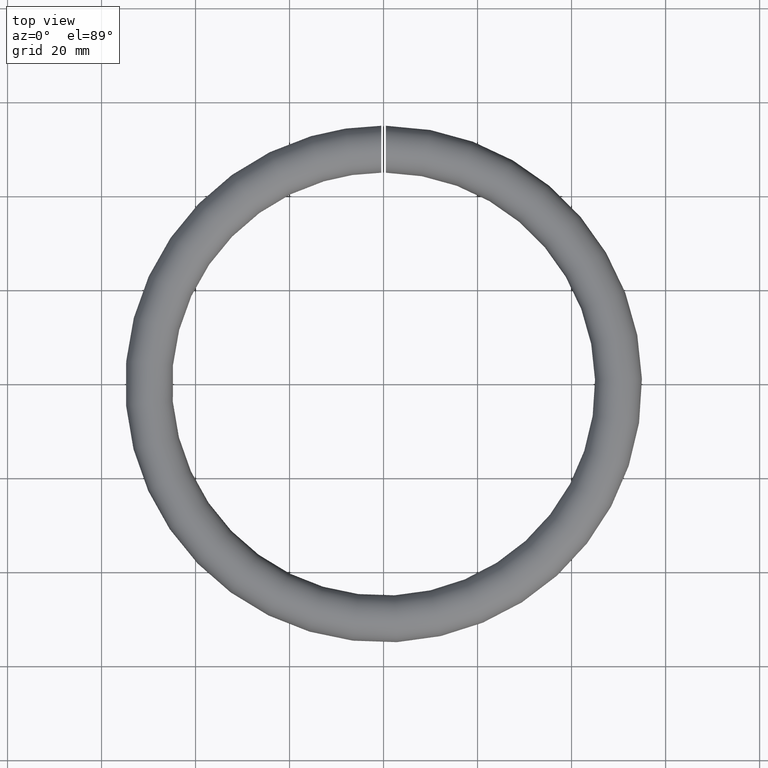
[diagram: clean part render]
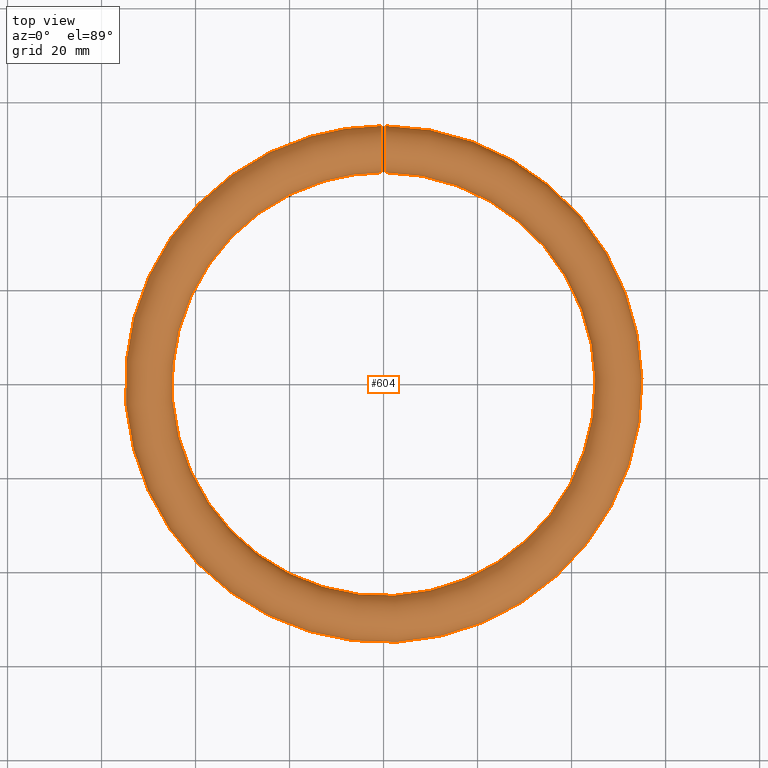
[diagram: same view with one face highlighted and labeled with its STEP entity id]
A machine part, top view. The second image highlights one B-rep face of the part: STEP entity #604.
In plain terms, the highlighted toroidal blend (fillet) surface has major radius 50 mm and minor (blend) radius 5 mm.
Its self-contained STEP definition (entity closure, byte-faithful):
#97 = EDGE_CURVE ( 'NONE', #10838, #10838, #9146, .T. ) ;
#106 = CARTESIAN_POINT ( 'NONE',  ( 0.5000000000000001100, 54.05339885584003000, -2.942461757279813300 ) ) ;
#261 = ORIENTED_EDGE ( 'NONE', *, *, #7487, .T. ) ;
#312 = CARTESIAN_POINT ( 'NONE',  ( 0.5000000000000001100, 45.44624804768028500, 2.096687624739268100 ) ) ;
#341 = CARTESIAN_POINT ( 'NONE',  ( 0.5000000000000001100, 52.94224342296823200, 4.054283343569194300 ) ) ;
#531 = CARTESIAN_POINT ( 'NONE',  ( -0.5000000000000001100, 51.62873146542833100, 4.729256036996202000 ) ) ;
#581 = CARTESIAN_POINT ( 'NONE',  ( -0.5000000000000000000, 52.66673879582198500, 4.240682915255522500 ) ) ;
#604 = ADVANCED_FACE ( 'NONE', ( #5918, #3274 ), #8352, .T. ) ;
#623 = CARTESIAN_POINT ( 'NONE',  ( -0.5000000000000002200, 50.79099305248964700, -4.947423658660608400 ) ) ;
#659 = CARTESIAN_POINT ( 'NONE',  ( -0.5000000000000000000, 44.98847468904049400, -0.1386555883358668600 ) ) ;
#700 = CARTESIAN_POINT ( 'NONE',  ( -0.5000000000000000000, 54.57193976712078900, 2.045563722136800600 ) ) ;
#844 = CARTESIAN_POINT ( 'NONE',  ( -0.4999999999999998900, 47.76354026244824500, -4.476210531569855700 ) ) ;
#899 = CARTESIAN_POINT ( 'NONE',  ( 0.5000000000000001100, 53.63571253122295700, -3.445507016077563400 ) ) ;
#1026 = CARTESIAN_POINT ( 'NONE',  ( 0.4999999999999998900, 54.54847125881668300, -2.097099958998216000 ) ) ;
#1061 = CARTESIAN_POINT ( 'NONE',  ( 0.5000000000000002200, 47.90468823406564500, -4.552801347687329200 ) ) ;
#1231 = CARTESIAN_POINT ( 'NONE',  ( 0.5000000000000003300, 49.21229729620159800, 4.948787847516219300 ) ) ;
#1274 = CARTESIAN_POINT ( 'NONE',  ( 0.5000000000000001100, 45.05866468543285900, 0.8468609916860232500 ) ) ;
#1483 = CARTESIAN_POINT ( 'NONE',  ( -0.4999999999999998900, 52.08457646597757700, 4.546583573426946900 ) ) ;
#1516 = CARTESIAN_POINT ( 'NONE',  ( -0.4999999999999998900, 52.19015832172614500, -4.496579342992024700 ) ) ;
#1556 = CARTESIAN_POINT ( 'NONE',  ( -0.5000000000000000000, 49.85862259276667200, 5.008679013557837400 ) ) ;
#1608 = CARTESIAN_POINT ( 'NONE',  ( -0.4999999999999998900, 52.23413712422110700, 4.474910137579317200 ) ) ;
#1759 = CARTESIAN_POINT ( 'NONE',  ( -0.4999999999999998900, 47.91067462153917900, -4.546697793431054200 ) ) ;
#1842 = CARTESIAN_POINT ( 'NONE',  ( 0.5000000000000002200, 54.96166799245860100, 0.6211285442158399600 ) ) ;
#1890 = CARTESIAN_POINT ( 'NONE',  ( 0.5000000000000000000, 55.00490348769945100, -0.1925885452237754100 ) ) ;
#1924 = CARTESIAN_POINT ( 'NONE',  ( 0.5000000000000002200, 47.05881801501092100, -4.048703112022192100 ) ) ;
#2014 = CARTESIAN_POINT ( 'NONE',  ( 0.5000000000000001100, 54.67728952670099600, -1.791014742488578700 ) ) ;
#2093 = CARTESIAN_POINT ( 'NONE',  ( 0.5000000000000001100, 46.04943041596606400, 3.072613798725525300 ) ) ;
#2180 = CARTESIAN_POINT ( 'NONE',  ( 0.4999999999999998900, 45.03291629936367700, -0.6185327342993243200 ) ) ;
#2373 = CARTESIAN_POINT ( 'NONE',  ( -0.4999999999999998900, 50.14093151474559600, -5.008592567173492300 ) ) ;
#2412 = CARTESIAN_POINT ( 'NONE',  ( -0.5000000000000002200, 53.40744113768951000, -3.671795873389160500 ) ) ;
#2463 = CARTESIAN_POINT ( 'NONE',  ( -0.4999999999999998900, 45.49880181683597900, -2.188714117849487100 ) ) ;
#2510 = CARTESIAN_POINT ( 'NONE',  ( -0.4999999999999998900, 54.67828678901789600, -1.788638645916340600 ) ) ;
#2533 = CARTESIAN_POINT ( 'NONE',  ( 0.5000000000000000000, 46.11439381848270400, -3.150098677149177900 ) ) ;
#2539 = CARTESIAN_POINT ( 'NONE',  ( -0.4999999999999998900, 54.26497366904961000, 2.626453770067559600 ) ) ;
#2739 = CARTESIAN_POINT ( 'NONE',  ( 0.5000000000000002200, 55.00651721480324600, 0.1346109607581106900 ) ) ;
#2808 = CARTESIAN_POINT ( 'NONE',  ( 0.5000000000000000000, 54.69755112238809900, 1.737555502815164400 ) ) ;
#2943 = CARTESIAN_POINT ( 'NONE',  ( 0.5000000000000000000, 44.99047316308842400, 0.1975589473094370700 ) ) ;
#2977 = CARTESIAN_POINT ( 'NONE',  ( 0.5000000000000002200, 51.16419726337262800, 4.873130174511799400 ) ) ;
#3070 = CARTESIAN_POINT ( 'NONE',  ( 0.5000000000000000000, 47.38013953038872500, 4.272744410352815200 ) ) ;
#3274 = FACE_OUTER_BOUND ( 'NONE', #6947, .T. ) ;
#3304 = CARTESIAN_POINT ( 'NONE',  ( -0.5000000000000002200, 54.05493618288313900, -2.940227316764771400 ) ) ;
#3355 = CARTESIAN_POINT ( 'NONE',  ( -0.5000000000000000000, 48.21283629988902000, -4.673558845428013700 ) ) ;
#3395 = CARTESIAN_POINT ( 'NONE',  ( -0.5000000000000000000, 45.75564294653093400, 2.667331525757360200 ) ) ;
#3434 = CARTESIAN_POINT ( 'NONE',  ( -0.5000000000000001100, 51.78216188877376400, 4.673561995244440000 ) ) ;
#3474 = CARTESIAN_POINT ( 'NONE',  ( -0.4999999999999997800, 52.04236793931662000, -4.565717075001612300 ) ) ;
#3582 = CARTESIAN_POINT ( 'NONE',  ( -0.5000000000000000000, 46.55365628190583000, -3.640060743238307900 ) ) ;
#3761 = CARTESIAN_POINT ( 'NONE',  ( 0.5000000000000000000, 47.33063889800627800, -4.232674605499621400 ) ) ;
#3837 = CARTESIAN_POINT ( 'NONE',  ( 0.5000000000000001100, 49.15525567614179900, -4.939340736679661800 ) ) ;
#3932 = CARTESIAN_POINT ( 'NONE',  ( 0.4999999999999998900, 45.12582713544951200, 1.173034431271106500 ) ) ;
#3955 = B_SPLINE_CURVE_WITH_KNOTS ( 'NONE', 3,
 ( #6928, #7857, #10664, #2463, #7089, #4291, #9820, #11774, #5193, #659, #11646, #10762, #10842, #9777, #10797, #3395, #7139, #8937, #10714, #6303, #6145, #6260, #7180, #11681, #9909, #1556, #5285, #7047, #8057, #531, #3434, #1483, #1608, #581, #5359, #5241, #11729, #8865, #2539, #700, #4383, #9868, #11805, #6181, #8097, #7979, #9030, #2510, #5318, #4337, #3304, #6218, #2412, #7213, #7930, #1516, #3474, #9939, #8023, #4257, #623, #2373, #8899, #8984, #4420, #10887, #3355, #1759, #844, #9974, #11059, #3582, #11934, #7318 ),
 .UNSPECIFIED., .T., .F.,
 ( 4, 2, 2, 2, 2, 2, 2, 2, 2, 2, 2, 2, 2, 2, 2, 2, 2, 2, 2, 2, 2, 2, 2, 2, 2, 2, 2, 2, 2, 2, 2, 2, 2, 2, 2, 2, 4 ),
 ( 0.0000000000000000000, 0.0009769328701743236700, 0.001465399305261485600, 0.001953865740348647300, 0.002930798610522964700, 0.003907731480697281700, 0.004884664350871599500, 0.005861597221045916500, 0.006838530091220232500, 0.007815462961394549500, 0.008792395831568865600, 0.009769328701743183400, 0.01074626157191749900, 0.01172319444209181700, 0.01270012731226613300, 0.01318859374735329100, 0.01367706018244044900, 0.01465399305261475200, 0.01563092592278905000, 0.01660785879296335100, 0.01758479166313765100, 0.01856172453331195200, 0.01953865740348625200, 0.02051559027366054900, 0.02149252314383485000, 0.02246945601400914700, 0.02344638888418345100, 0.02442332175435774800, 0.02491178818944490100, 0.02540025462453205200, 0.02637718749470634900, 0.02735412036488064900, 0.02833105323505494600, 0.02881951967014210300, 0.02930798610522925400, 0.03028491897540355400, 0.03126185184557785800 ),
 .UNSPECIFIED. ) ;
#3972 = CARTESIAN_POINT ( 'NONE',  ( 0.5000000000000001100, 46.59503554127384500, 3.678745041951250600 ) ) ;
#4004 = CARTESIAN_POINT ( 'NONE',  ( 0.5000000000000003300, 50.19633856988521400, 5.006668374467188300 ) ) ;
#4257 = CARTESIAN_POINT ( 'NONE',  ( -0.5000000000000000000, 51.11081552024006700, -4.885524791492903400 ) ) ;
#4291 = CARTESIAN_POINT ( 'NONE',  ( -0.5000000000000000000, 45.30572719170671500, -1.736844963863942500 ) ) ;
#4337 = CARTESIAN_POINT ( 'NONE',  ( -0.5000000000000000000, 54.24101088353894800, -2.664848406459241000 ) ) ;
#4383 = CARTESIAN_POINT ( 'NONE',  ( -0.5000000000000000000, 54.69664084878910900, 1.739581713564880600 ) ) ;
#4420 = CARTESIAN_POINT ( 'NONE',  ( -0.5000000000000001100, 48.83926423770012800, -4.875076280987465300 ) ) ;
#4478 = VERTEX_POINT ( 'NONE', #5279 ) ;
#4671 = CARTESIAN_POINT ( 'NONE',  ( 0.5000000000000001100, 51.73299800573005300, -4.700465236432758200 ) ) ;
#4714 = AXIS2_PLACEMENT_3D ( 'NONE', #5517, #10995, #7351 ) ;
#4792 = CARTESIAN_POINT ( 'NONE',  ( 0.5000000000000001100, 54.23600871166464500, -2.672820481106030800 ) ) ;
#4839 = CARTESIAN_POINT ( 'NONE',  ( 0.5000000000000001100, 45.05615145017213100, -0.7827095264287070600 ) ) ;
#4872 = CARTESIAN_POINT ( 'NONE',  ( 0.5000000000000001100, 52.09606073324471300, 4.550001155425170500 ) ) ;
#4915 = CARTESIAN_POINT ( 'NONE',  ( 0.5000000000000001100, 46.36188250132102700, 3.448155437882528300 ) ) ;
#4962 = CARTESIAN_POINT ( 'NONE',  ( 0.5000000000000001100, 48.89249869734300100, 4.887353864870853200 ) ) ;
#4996 = CARTESIAN_POINT ( 'NONE',  ( 0.4999999999999998900, 54.27047415967507500, 2.617258504658420900 ) ) ;
#5193 = CARTESIAN_POINT ( 'NONE',  ( -0.5000000000000001100, 45.04912526061212900, -0.7893520066734093200 ) ) ;
#5241 = CARTESIAN_POINT ( 'NONE',  ( -0.5000000000000001100, 53.43952855209840200, 3.641457628214977800 ) ) ;
#5279 = CARTESIAN_POINT ( 'NONE',  ( -0.5000000000000000000, 46.11439381848270400, -3.150098677149177900 ) ) ;
#5285 = CARTESIAN_POINT ( 'NONE',  ( -0.5000000000000000000, 50.18492275913600100, 5.007371841885678500 ) ) ;
#5318 = CARTESIAN_POINT ( 'NONE',  ( -0.5000000000000000000, 54.55222867303669400, -2.088896795792177100 ) ) ;
#5359 = CARTESIAN_POINT ( 'NONE',  ( -0.5000000000000001100, 52.93656565705149600, 4.058247736526992900 ) ) ;
#5517 = CARTESIAN_POINT ( 'NONE',  ( 0.0000000000000000000, 0.0000000000000000000, 0.0000000000000000000 ) ) ;
#5572 = CARTESIAN_POINT ( 'NONE',  ( 0.5000000000000000000, 51.10864826856101200, -4.885847516079976100 ) ) ;
#5606 = CARTESIAN_POINT ( 'NONE',  ( 0.4999999999999998900, 54.87688576088830000, 1.104833423639754600 ) ) ;
#5702 = CARTESIAN_POINT ( 'NONE',  ( 0.4999999999999997800, 52.89223564602534100, -4.089941720196995000 ) ) ;
#5740 = CARTESIAN_POINT ( 'NONE',  ( 0.5000000000000001100, 53.39893461378222400, -3.679354764353778100 ) ) ;
#5825 = CARTESIAN_POINT ( 'NONE',  ( 0.5000000000000002200, 45.41834826637209900, -2.035316350214216600 ) ) ;
#5897 = CARTESIAN_POINT ( 'NONE',  ( 0.5000000000000000000, 45.95130001559884600, 2.942261559476065300 ) ) ;
#5918 = FACE_OUTER_BOUND ( 'NONE', #9842, .T. ) ;
#6145 = CARTESIAN_POINT ( 'NONE',  ( -0.5000000000000001100, 47.37605297856877900, 4.270316971187225100 ) ) ;
#6181 = CARTESIAN_POINT ( 'NONE',  ( -0.4999999999999998900, 55.00669033928591000, 0.1369194239983181100 ) ) ;
#6218 = CARTESIAN_POINT ( 'NONE',  ( -0.4999999999999998900, 53.63894099956463900, -3.441997356706700800 ) ) ;
#6260 = CARTESIAN_POINT ( 'NONE',  ( -0.5000000000000000000, 47.95441717936793700, 4.575272028560576100 ) ) ;
#6303 = CARTESIAN_POINT ( 'NONE',  ( -0.5000000000000000000, 47.09839478624835600, 4.086857918170882600 ) ) ;
#6492 = CARTESIAN_POINT ( 'NONE',  ( 0.4999999999999998900, 48.20489659642395000, -4.679066799839262100 ) ) ;
#6586 = CARTESIAN_POINT ( 'NONE',  ( 0.5000000000000000000, 46.32251734565790700, -3.406622207030825900 ) ) ;
#6780 = CARTESIAN_POINT ( 'NONE',  ( 0.5000000000000000000, 45.68110171623335700, 2.529362379005569500 ) ) ;
#6824 = CARTESIAN_POINT ( 'NONE',  ( 0.4999999999999998900, 46.11439381848270400, -3.150098677149176600 ) ) ;
#6928 = CARTESIAN_POINT ( 'NONE',  ( -0.5000000000000000000, 46.11439381848270400, -3.150098677149177500 ) ) ;
#6947 = EDGE_LOOP ( 'NONE', ( #261 ) ) ;
#7047 = CARTESIAN_POINT ( 'NONE',  ( -0.4999999999999998900, 50.84142530727796600, 4.939307311992364700 ) ) ;
#7089 = CARTESIAN_POINT ( 'NONE',  ( -0.5000000000000001100, 45.42972446414133000, -2.040748922486423000 ) ) ;
#7139 = CARTESIAN_POINT ( 'NONE',  ( -0.5000000000000000000, 45.93985880580935100, 2.940339989996614300 ) ) ;
#7180 = CARTESIAN_POINT ( 'NONE',  ( -0.5000000000000001100, 48.25592244645891800, 4.698349446883519900 ) ) ;
#7213 = CARTESIAN_POINT ( 'NONE',  ( -0.5000000000000000000, 52.89577224609405400, -4.087726377589470800 ) ) ;
#7318 = CARTESIAN_POINT ( 'NONE',  ( -0.5000000000000000000, 46.11439381848270400, -3.150098677149177500 ) ) ;
#7351 = DIRECTION ( 'NONE',  ( -1.000000000000000000, 0.0000000000000000000, 0.0000000000000000000 ) ) ;
#7419 = CARTESIAN_POINT ( 'NONE',  ( 0.5000000000000000000, 54.87015796607024500, -1.168558507185605100 ) ) ;
#7451 = CARTESIAN_POINT ( 'NONE',  ( 0.5000000000000001100, 54.93615512905550700, -0.8490030518234722400 ) ) ;
#7487 = EDGE_CURVE ( 'NONE', #4478, #4478, #3955, .T. ) ;
#7582 = CARTESIAN_POINT ( 'NONE',  ( 0.5000000000000000000, 50.78476031614734900, -4.948571251591774400 ) ) ;
#7656 = CARTESIAN_POINT ( 'NONE',  ( 0.5000000000000001100, 52.66853102701127700, 4.239376785569485100 ) ) ;
#7740 = CARTESIAN_POINT ( 'NONE',  ( 0.5000000000000002200, 51.79329087566579700, 4.678022408740268600 ) ) ;
#7771 = CARTESIAN_POINT ( 'NONE',  ( 0.5000000000000000000, 45.15664950973642500, -1.263043214661794900 ) ) ;
#7857 = CARTESIAN_POINT ( 'NONE',  ( -0.5000000000000000000, 45.90627033696533500, -2.893575203543284200 ) ) ;
#7930 = CARTESIAN_POINT ( 'NONE',  ( -0.5000000000000001100, 52.62206939929541200, -4.268296344106367700 ) ) ;
#7979 = CARTESIAN_POINT ( 'NONE',  ( -0.5000000000000000000, 54.93782255164936900, -0.8376787049044830400 ) ) ;
#8023 = CARTESIAN_POINT ( 'NONE',  ( -0.5000000000000000000, 51.58261189847418400, -4.744954092153422600 ) ) ;
#8057 = CARTESIAN_POINT ( 'NONE',  ( -0.4999999999999998900, 51.16190840416883400, 4.873435179141037700 ) ) ;
#8097 = CARTESIAN_POINT ( 'NONE',  ( -0.5000000000000000000, 55.00477244868428500, -0.1891374549311930200 ) ) ;
#8290 = ORIENTED_EDGE ( 'NONE', *, *, #97, .T. ) ;
#8336 = CARTESIAN_POINT ( 'NONE',  ( 0.5000000000000000000, 54.93879823321447000, 0.7827432210664337900 ) ) ;
#8352 = TOROIDAL_SURFACE ( 'NONE', #4714, 50.00000000000000000, 5.000000000000000000 ) ;
#8379 = CARTESIAN_POINT ( 'NONE',  ( 0.4999999999999998900, 49.80413216553645100, -5.006895540824110900 ) ) ;
#8498 = CARTESIAN_POINT ( 'NONE',  ( 0.5000000000000000000, 45.72547844137847100, -2.619286598796962900 ) ) ;
#8546 = CARTESIAN_POINT ( 'NONE',  ( 0.5000000000000000000, 53.44738895302720700, 3.634183249441882900 ) ) ;
#8662 = CARTESIAN_POINT ( 'NONE',  ( 0.5000000000000000000, 54.57464777160988900, 2.039192424931326000 ) ) ;
#8865 = CARTESIAN_POINT ( 'NONE',  ( -0.4999999999999998900, 54.08513165820804900, 2.898151821676547600 ) ) ;
#8899 = CARTESIAN_POINT ( 'NONE',  ( -0.5000000000000002200, 49.80791999323394500, -5.007056056863355300 ) ) ;
#8937 = CARTESIAN_POINT ( 'NONE',  ( -0.5000000000000000000, 46.36018538448635000, 3.446683717270371700 ) ) ;
#8984 = CARTESIAN_POINT ( 'NONE',  ( -0.5000000000000000000, 49.15851714765074800, -4.939911601450596400 ) ) ;
#9030 = CARTESIAN_POINT ( 'NONE',  ( -0.5000000000000002200, 54.87142718653047500, -1.163609912022770500 ) ) ;
#9146 = B_SPLINE_CURVE_WITH_KNOTS ( 'NONE', 3,
 ( #10217, #6586, #11073, #9391, #1924, #3761, #11117, #1061, #6492, #9347, #3837, #8379, #9276, #7582, #5572, #4671, #12002, #10310, #5702, #5740, #899, #106, #4792, #1026, #2014, #7419, #7451, #1890, #2739, #1842, #8336, #5606, #10177, #2808, #8662, #4996, #11398, #9599, #8546, #341, #7656, #4872, #7740, #2977, #9474, #4004, #9556, #1231, #4962, #10436, #9438, #3070, #11282, #3972, #4915, #2093, #5897, #10470, #6780, #312, #11451, #3932, #1274, #2943, #10386, #2180, #4839, #11361, #7771, #11328, #5825, #8498, #10502, #6824 ),
 .UNSPECIFIED., .T., .F.,
 ( 4, 2, 2, 2, 2, 2, 2, 2, 2, 2, 2, 2, 2, 2, 2, 2, 2, 2, 2, 2, 2, 2, 2, 2, 2, 2, 2, 2, 2, 2, 2, 2, 2, 2, 2, 2, 4 ),
 ( 0.0000000000000000000, 0.0009769318516086901400, 0.001465397777413035200, 0.001953863703217380300, 0.002930795554826089900, 0.003907727406434799600, 0.004884659258043509700, 0.005861591109652218900, 0.006838522961260928200, 0.007815454812869637400, 0.008792386664478346600, 0.009769318516087055800, 0.01074625036769576500, 0.01172318221930447400, 0.01270011407091318400, 0.01318857999671753700, 0.01367704592252189100, 0.01465397777413059200, 0.01563090962573929200, 0.01660784147734799300, 0.01758477332895669300, 0.01856170518056539400, 0.01953863703217409400, 0.02051556888378279500, 0.02149250073539149500, 0.02246943258700019600, 0.02344636443860889700, 0.02442329629021759700, 0.02491176221602194400, 0.02540022814182629400, 0.02637715999343499500, 0.02735409184504369500, 0.02833102369665239600, 0.02881948962245674600, 0.02930795554826110000, 0.03028488739986980000, 0.03126181925147850100 ),
 .UNSPECIFIED. ) ;
#9276 = CARTESIAN_POINT ( 'NONE',  ( 0.4999999999999998900, 50.13001927194827100, -5.009043377818200900 ) ) ;
#9347 = CARTESIAN_POINT ( 'NONE',  ( 0.4999999999999998900, 48.82911165674077100, -4.872552545263820500 ) ) ;
#9391 = CARTESIAN_POINT ( 'NONE',  ( 0.5000000000000001100, 46.92826703126900200, -3.950612879952831900 ) ) ;
#9438 = CARTESIAN_POINT ( 'NONE',  ( 0.5000000000000003300, 47.95691789009615000, 4.576314733173134600 ) ) ;
#9474 = CARTESIAN_POINT ( 'NONE',  ( 0.5000000000000002200, 50.84474780178161500, 4.938471711944446300 ) ) ;
#9556 = CARTESIAN_POINT ( 'NONE',  ( 0.5000000000000002200, 49.86372433101652000, 5.008900850945503100 ) ) ;
#9599 = CARTESIAN_POINT ( 'NONE',  ( 0.5000000000000001100, 53.67618743313667600, 3.402204083696963400 ) ) ;
#9777 = CARTESIAN_POINT ( 'NONE',  ( -0.5000000000000001100, 45.31732092441039600, 1.790650326588263000 ) ) ;
#9820 = CARTESIAN_POINT ( 'NONE',  ( -0.5000000000000002200, 45.25074762670625000, -1.580406545672669200 ) ) ;
#9842 = EDGE_LOOP ( 'NONE', ( #8290 ) ) ;
#9868 = CARTESIAN_POINT ( 'NONE',  ( -0.5000000000000000000, 54.88259512942184400, 1.115379008529335600 ) ) ;
#9909 = CARTESIAN_POINT ( 'NONE',  ( -0.5000000000000001100, 49.20977778994191700, 4.948303463203114200 ) ) ;
#9939 = CARTESIAN_POINT ( 'NONE',  ( -0.4999999999999998900, 51.73899977752469700, -4.689810998731457100 ) ) ;
#9974 = CARTESIAN_POINT ( 'NONE',  ( -0.4999999999999998900, 47.33375760536380700, -4.243970170106248200 ) ) ;
#10177 = CARTESIAN_POINT ( 'NONE',  ( 0.5000000000000001100, 54.83758052653200100, 1.265956570080481600 ) ) ;
#10217 = CARTESIAN_POINT ( 'NONE',  ( 0.4999999999999998900, 46.11439381848270400, -3.150098677149176600 ) ) ;
#10310 = CARTESIAN_POINT ( 'NONE',  ( 0.4999999999999998900, 52.62027606252413400, -4.269655849617270100 ) ) ;
#10386 = CARTESIAN_POINT ( 'NONE',  ( 0.5000000000000002200, 44.98809863014913900, -0.1282011346216045100 ) ) ;
#10436 = CARTESIAN_POINT ( 'NONE',  ( 0.5000000000000000000, 48.26475606619860800, 4.701599752710902400 ) ) ;
#10470 = CARTESIAN_POINT ( 'NONE',  ( 0.4999999999999998900, 45.76731173960922700, 2.671014452872089200 ) ) ;
#10502 = CARTESIAN_POINT ( 'NONE',  ( 0.4999999999999997800, 45.90627029130748600, -2.893575147267525100 ) ) ;
#10664 = CARTESIAN_POINT ( 'NONE',  ( -0.5000000000000001100, 45.72679589947058800, -2.620916382631797200 ) ) ;
#10714 = CARTESIAN_POINT ( 'NONE',  ( -0.5000000000000001100, 46.59212484293730200, 3.675729981764835700 ) ) ;
#10762 = CARTESIAN_POINT ( 'NONE',  ( -0.4999999999999998900, 45.05803960530331400, 0.8431127649151867200 ) ) ;
#10797 = CARTESIAN_POINT ( 'NONE',  ( -0.5000000000000000000, 45.44548570515409800, 2.094633163312747700 ) ) ;
#10838 = VERTEX_POINT ( 'NONE', #2533 ) ;
#10842 = CARTESIAN_POINT ( 'NONE',  ( -0.5000000000000000000, 45.12313327008750000, 1.162441288450165800 ) ) ;
#10887 = CARTESIAN_POINT ( 'NONE',  ( -0.4999999999999998900, 48.36869543888416000, -4.730137994826974600 ) ) ;
#10995 = DIRECTION ( 'NONE',  ( -0.0000000000000000000, -0.0000000000000000000, -1.000000000000000000 ) ) ;
#11059 = CARTESIAN_POINT ( 'NONE',  ( -0.5000000000000001100, 47.06178429872342400, -4.060950255645187700 ) ) ;
#11073 = CARTESIAN_POINT ( 'NONE',  ( 0.5000000000000004400, 46.55233406468909900, -3.638436936602108300 ) ) ;
#11117 = CARTESIAN_POINT ( 'NONE',  ( 0.4999999999999998900, 47.47238626870343100, -4.318717798695204600 ) ) ;
#11282 = CARTESIAN_POINT ( 'NONE',  ( 0.5000000000000000000, 47.10753965433815400, 4.093617338729796300 ) ) ;
#11328 = CARTESIAN_POINT ( 'NONE',  ( 0.4999999999999998900, 45.29531704033599500, -1.731468277286258000 ) ) ;
#11361 = CARTESIAN_POINT ( 'NONE',  ( 0.5000000000000000000, 45.11800359413265200, -1.104537679102880000 ) ) ;
#11398 = CARTESIAN_POINT ( 'NONE',  ( 0.5000000000000004400, 54.08718115496449700, 2.895259477370783200 ) ) ;
#11451 = CARTESIAN_POINT ( 'NONE',  ( 0.5000000000000002200, 45.31972615323159200, 1.796502873426212500 ) ) ;
#11646 = CARTESIAN_POINT ( 'NONE',  ( -0.5000000000000003300, 44.99035975798927500, 0.1942514144232373700 ) ) ;
#11681 = CARTESIAN_POINT ( 'NONE',  ( -0.5000000000000000000, 48.88371756849139200, 4.885374220910577500 ) ) ;
#11729 = CARTESIAN_POINT ( 'NONE',  ( -0.5000000000000001100, 53.67378218784170900, 3.404802519465608000 ) ) ;
#11774 = CARTESIAN_POINT ( 'NONE',  ( -0.5000000000000001100, 45.11079690775111600, -1.109140009077158800 ) ) ;
#11805 = CARTESIAN_POINT ( 'NONE',  ( -0.5000000000000002200, 54.94545742482411300, 0.7927163266707287800 ) ) ;
#11934 = CARTESIAN_POINT ( 'NONE',  ( -0.4999999999999998900, 46.32251730000006500, -3.406622150755066200 ) ) ;
#12002 = CARTESIAN_POINT ( 'NONE',  ( 0.4999999999999998900, 52.03811540984746400, -4.576521666069060900 ) ) ;